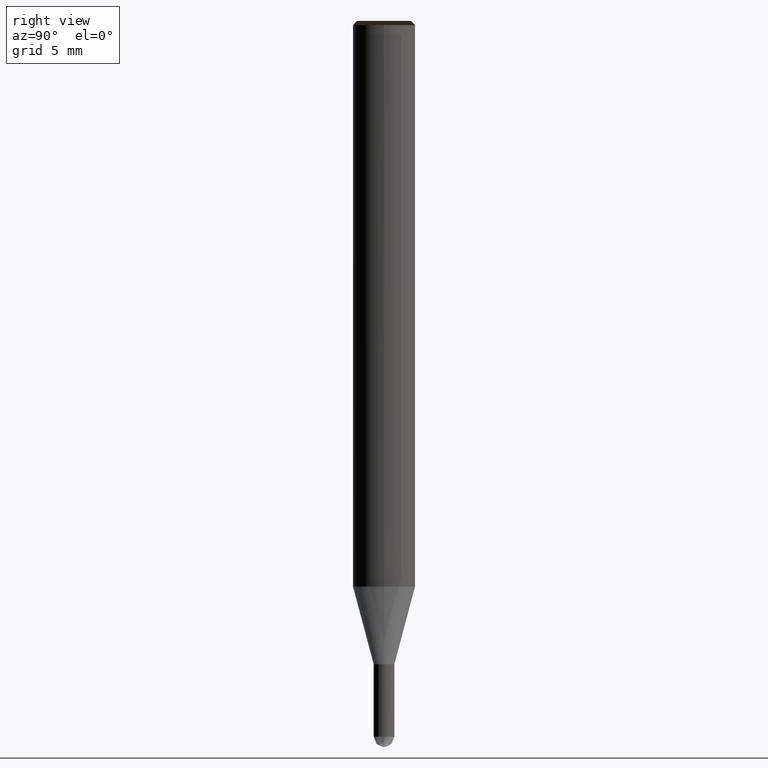
[diagram: clean part render]
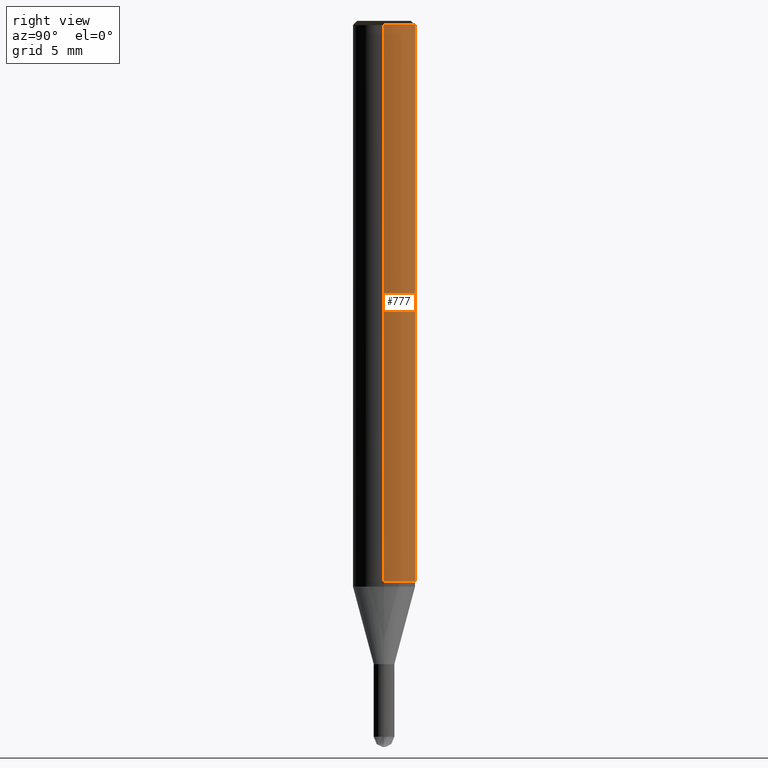
[diagram: same view with one face highlighted and labeled with its STEP entity id]
A machine part, right view. The second image highlights one B-rep face of the part: STEP entity #777.
In plain terms, the highlighted face is a freeform B-spline surface patch.
Its self-contained STEP definition (entity closure, byte-faithful):
#536=CARTESIAN_POINT('',(1.5,0.0,0.0));
#537=CARTESIAN_POINT('',(1.5,1.5,0.0));
#538=CARTESIAN_POINT('',(0.0,1.5,0.0));
#539=CARTESIAN_POINT('',(-1.5,1.5,0.0));
#540=CARTESIAN_POINT('',(-1.5,0.0,0.0));
#541=CARTESIAN_POINT('',(1.5,0.0,26.8));
#542=CARTESIAN_POINT('',(1.5,1.5,26.8));
#543=CARTESIAN_POINT('',(0.0,1.5,26.8));
#544=CARTESIAN_POINT('',(-1.5,1.5,26.8));
#545=CARTESIAN_POINT('',(-1.5,0.0,26.8));
#758=(
BOUNDED_SURFACE()
B_SPLINE_SURFACE(1,2,(
(#536,#537,#538,#539,#540),
(#541,#542,#543,#544,#545)
), .UNSPECIFIED.,.F.,.F.,.F.)
B_SPLINE_SURFACE_WITH_KNOTS((2,2),(3,2,3),(
0.0,1.0),(
0.0,0.5,1.0), .UNSPECIFIED.)
GEOMETRIC_REPRESENTATION_ITEM()
RATIONAL_B_SPLINE_SURFACE(((1.0,0.707106781187,1.0,0.707106781187,1.0),
(1.0,0.707106781187,1.0,0.707106781187,1.0)
))
REPRESENTATION_ITEM('')
SURFACE()
);
#759=(
BOUNDED_CURVE()
B_SPLINE_CURVE(2,(#540,#539,#538,#537,#536),.UNSPECIFIED.,.F.,.F.)
B_SPLINE_CURVE_WITH_KNOTS((3,2,3),
(0.0,0.5,1.0),.UNSPECIFIED.)
CURVE()
GEOMETRIC_REPRESENTATION_ITEM()
RATIONAL_B_SPLINE_CURVE((1.0,0.707106781187,1.0,0.707106781187,1.0))
REPRESENTATION_ITEM('')
);
#760=(
BOUNDED_CURVE()
B_SPLINE_CURVE(1,(#536,#541),.UNSPECIFIED.,.F.,.F.)
B_SPLINE_CURVE_WITH_KNOTS((2,2),
(0.0,1.0),.UNSPECIFIED.)
CURVE()
GEOMETRIC_REPRESENTATION_ITEM()
RATIONAL_B_SPLINE_CURVE((1.0,1.0))
REPRESENTATION_ITEM('')
);
#761=(
BOUNDED_CURVE()
B_SPLINE_CURVE(2,(#541,#542,#543,#544,#545),.UNSPECIFIED.,.F.,.F.)
B_SPLINE_CURVE_WITH_KNOTS((3,2,3),
(0.0,0.5,1.0),.UNSPECIFIED.)
CURVE()
GEOMETRIC_REPRESENTATION_ITEM()
RATIONAL_B_SPLINE_CURVE((1.0,0.707106781187,1.0,0.707106781187,1.0))
REPRESENTATION_ITEM('')
);
#762=(
BOUNDED_CURVE()
B_SPLINE_CURVE(1,(#545,#540),.UNSPECIFIED.,.F.,.F.)
B_SPLINE_CURVE_WITH_KNOTS((2,2),
(0.0,1.0),.UNSPECIFIED.)
CURVE()
GEOMETRIC_REPRESENTATION_ITEM()
RATIONAL_B_SPLINE_CURVE((1.0,1.0))
REPRESENTATION_ITEM('')
);
#763=VERTEX_POINT('',#536);
#764=VERTEX_POINT('',#540);
#765=VERTEX_POINT('',#541);
#766=VERTEX_POINT('',#545);
#767=EDGE_CURVE('',#764,#763,#759,.T.);
#768=EDGE_CURVE('',#763,#765,#760,.T.);
#769=EDGE_CURVE('',#765,#766,#761,.T.);
#770=EDGE_CURVE('',#766,#764,#762,.T.);
#771=ORIENTED_EDGE('',*,*,#767,.T.);
#772=ORIENTED_EDGE('',*,*,#768,.T.);
#773=ORIENTED_EDGE('',*,*,#769,.T.);
#774=ORIENTED_EDGE('',*,*,#770,.T.);
#775=EDGE_LOOP('',(#771,#772,#773,#774));
#776=FACE_OUTER_BOUND('',#775,.T.);
#777=ADVANCED_FACE('',(#776),#758,.T.);